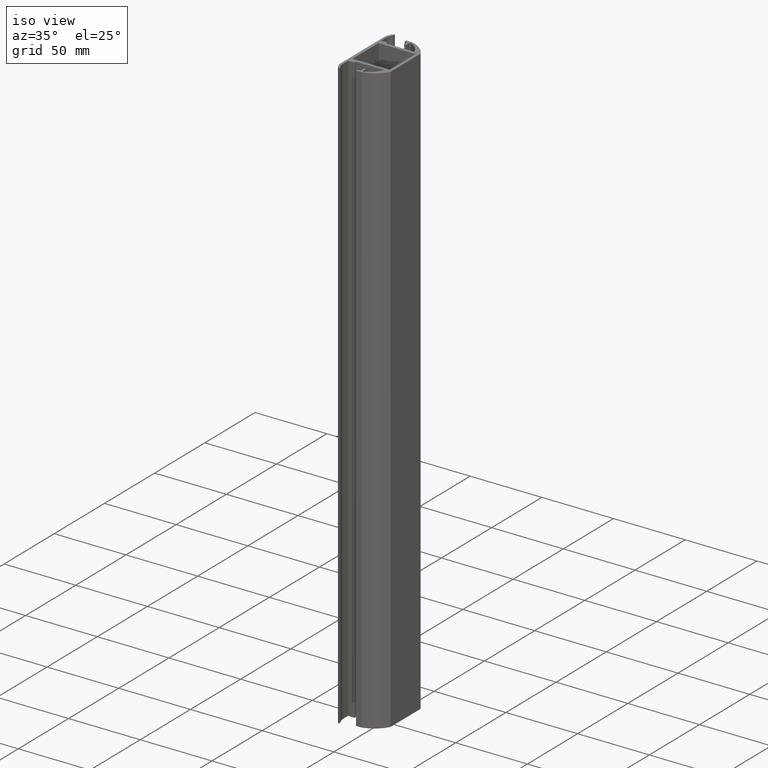
[diagram: clean part render]
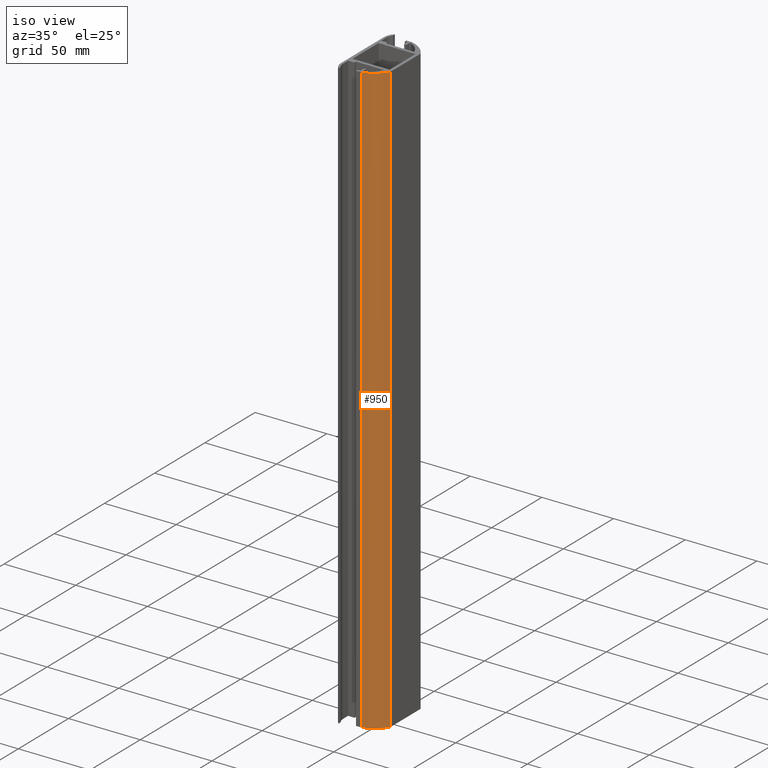
[diagram: same view with one face highlighted and labeled with its STEP entity id]
A machine part, iso view. The second image highlights one B-rep face of the part: STEP entity #950.
In plain terms, the highlighted cylindrical surface (edge-blend (fillet) strip) has radius 20.5913 mm, axis along (0, 0, 1).
Its self-contained STEP definition (entity closure, byte-faithful):
#80=FACE_OUTER_BOUND('',#128,.T.);
#128=EDGE_LOOP('',(#739,#740,#741,#742));
#220=LINE('',#1482,#338);
#221=LINE('',#1485,#339);
#338=VECTOR('',#1207,10.);
#339=VECTOR('',#1210,10.);
#399=CIRCLE('',#1032,20.5912602799149);
#400=CIRCLE('',#1033,20.5912602799149);
#463=VERTEX_POINT('',#1478);
#464=VERTEX_POINT('',#1479);
#465=VERTEX_POINT('',#1481);
#466=VERTEX_POINT('',#1483);
#578=EDGE_CURVE('',#463,#464,#399,.T.);
#579=EDGE_CURVE('',#465,#463,#220,.T.);
#580=EDGE_CURVE('',#466,#465,#400,.T.);
#581=EDGE_CURVE('',#464,#466,#221,.T.);
#739=ORIENTED_EDGE('',*,*,#578,.F.);
#740=ORIENTED_EDGE('',*,*,#579,.F.);
#741=ORIENTED_EDGE('',*,*,#580,.F.);
#742=ORIENTED_EDGE('',*,*,#581,.F.);
#920=CYLINDRICAL_SURFACE('',#1031,20.5912602799149);
#950=ADVANCED_FACE('',(#80),#920,.T.);
#1031=AXIS2_PLACEMENT_3D('',#1477,#1203,#1204);
#1032=AXIS2_PLACEMENT_3D('',#1480,#1205,#1206);
#1033=AXIS2_PLACEMENT_3D('',#1484,#1208,#1209);
#1203=DIRECTION('center_axis',(0.,0.,1.));
#1204=DIRECTION('ref_axis',(0.2379154757154,-0.971285862357275,0.));
#1205=DIRECTION('center_axis',(0.,0.,1.));
#1206=DIRECTION('ref_axis',(0.2379154757154,-0.971285862357275,0.));
#1207=DIRECTION('',(0.,0.,1.));
#1208=DIRECTION('center_axis',(0.,0.,-1.));
#1209=DIRECTION('ref_axis',(0.2379154757154,-0.971285862357275,0.));
#1210=DIRECTION('',(0.,0.,-1.));
#1477=CARTESIAN_POINT('Origin',(-2.99999999819962,-5.00000000229519,0.));
#1478=CARTESIAN_POINT('',(1.89897948687596,-25.0000000002954,413.));
#1479=CARTESIAN_POINT('',(15.,-15.0000000012959,413.));
#1480=CARTESIAN_POINT('Origin',(-2.99999999819962,-5.00000000229519,413.));
#1481=CARTESIAN_POINT('',(1.89897948687596,-25.0000000002954,0.));
#1482=CARTESIAN_POINT('',(1.89897948687596,-25.0000000002954,0.));
#1483=CARTESIAN_POINT('',(15.,-15.0000000012959,0.));
#1484=CARTESIAN_POINT('Origin',(-2.99999999819962,-5.00000000229519,0.));
#1485=CARTESIAN_POINT('',(15.,-15.0000000012959,0.));